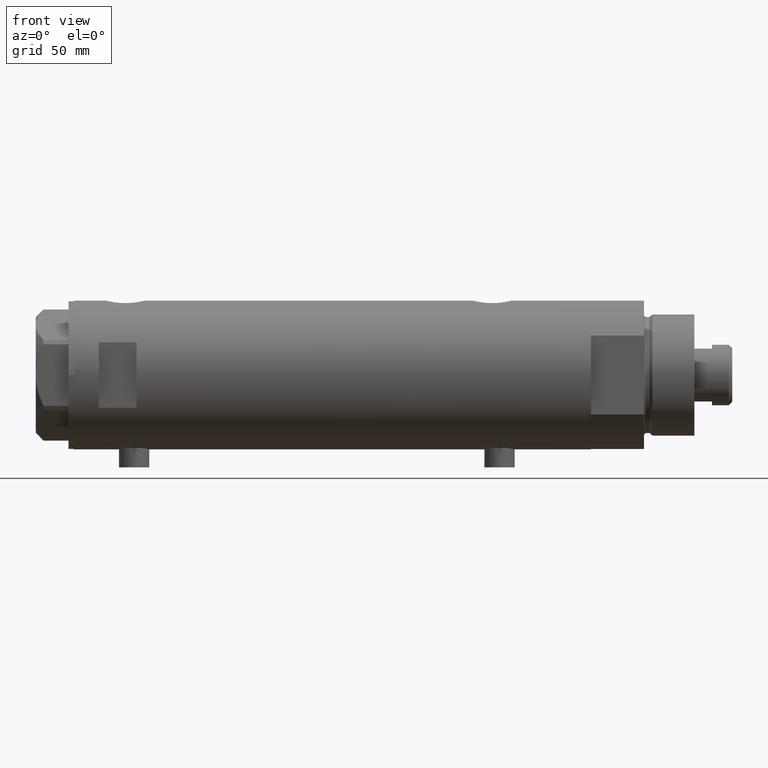
[diagram: clean part render]
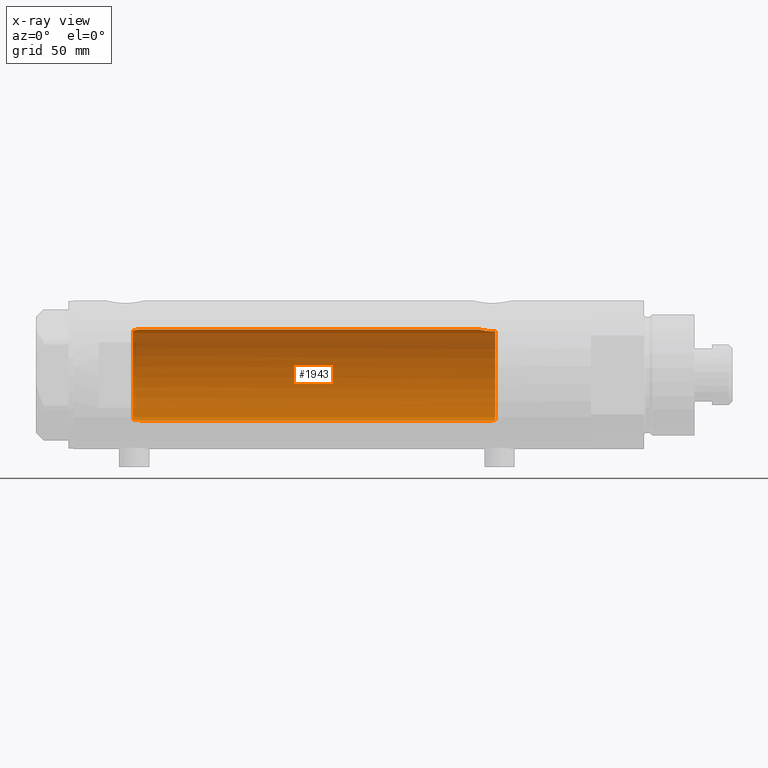
[diagram: x-ray — body ghosted, one internal face saturated and labeled with its STEP entity id]
A machine part, front view, then the same camera in x-ray: the body is ghosted and one INTERNAL B-rep face — a face not visible from any outside direction — is saturated and labeled: STEP entity #1943.
In plain terms, the highlighted cylindrical surface (partial cylindrical patch) has radius 18 mm, axis along (1, 0, -0).
Its self-contained STEP definition (entity closure, byte-faithful):
#24 = CARTESIAN_POINT ( 'NONE',  ( 17.97733715731491344, 0.9209699998971196955, -58.61935966604425374 ) ) ;
#38 = CARTESIAN_POINT ( 'NONE',  ( 17.58783030962033678, 3.829911878881830489, 79.10000000000000853 ) ) ;
#72 = CARTESIAN_POINT ( 'NONE',  ( 17.99716691696285764, 0.3685254503903822032, -58.54545042928658916 ) ) ;
#116 = CARTESIAN_POINT ( 'NONE',  ( -18.00000000000000000, 0.000000000000000000, -63.79999999999999716 ) ) ;
#123 = CARTESIAN_POINT ( 'NONE',  ( 17.43128843254318028, 4.489613141718955092, -61.51700003713169451 ) ) ;
#244 = DIRECTION ( 'NONE',  ( 0.000000000000000000, 0.000000000000000000, 1.000000000000000000 ) ) ;
#309 = CARTESIAN_POINT ( 'NONE',  ( -17.82749843654113420, 2.486298441295534012, 78.91967494109754000 ) ) ;
#341 = ORIENTED_EDGE ( 'NONE', *, *, #705, .T. ) ;
#354 = CARTESIAN_POINT ( 'NONE',  ( 17.78617492856930227, 2.770629413254904971, 78.09682049650069757 ) ) ;
#376 = CARTESIAN_POINT ( 'NONE',  ( 17.63704841537100521, 3.603891093161686321, 78.81145343596539021 ) ) ;
#378 = CARTESIAN_POINT ( 'NONE',  ( 0.000000000000000000, 0.000000000000000000, 102.5999999999999943 ) ) ;
#430 = CARTESIAN_POINT ( 'NONE',  ( 17.83158514913445103, 2.461498934476306744, 77.89965995681279765 ) ) ;
#437 = CARTESIAN_POINT ( 'NONE',  ( 17.38237957915197285, 4.675094569549006707, -62.04138980228256628 ) ) ;
#461 = CARTESIAN_POINT ( 'NONE',  ( 17.34671983132638573, 4.806279138776327287, -64.24012329268312271 ) ) ;
#508 = CARTESIAN_POINT ( 'NONE',  ( 17.78478726694684653, 2.779555353823087938, -59.40297143050465678 ) ) ;
#682 = CARTESIAN_POINT ( 'NONE',  ( -18.00000000000000711, 0.3684436523298857957, 76.10000000000000853 ) ) ;
#684 = AXIS2_PLACEMENT_3D ( 'NONE', #378, #836, #3344 ) ;
#705 = EDGE_CURVE ( 'NONE', #939, #3482, #3832, .T. ) ;
#708 = CARTESIAN_POINT ( 'NONE',  ( -17.95816418424195504, 1.237771781631975099, 76.42014148713401767 ) ) ;
#732 = EDGE_CURVE ( 'NONE', #1692, #2147, #1037, .T. ) ;
#737 = CYLINDRICAL_SURFACE ( 'NONE', #684, 18.00000000000000000 ) ;
#836 = DIRECTION ( 'NONE',  ( -0.000000000000000000, -0.000000000000000000, -1.000000000000000000 ) ) ;
#871 = CARTESIAN_POINT ( 'NONE',  ( 17.94405978035182869, 1.463580074031385347, -58.74553017623721729 ) ) ;
#878 = CARTESIAN_POINT ( 'NONE',  ( -17.96336505771914460, 1.158437137172621645, -64.07804627005675968 ) ) ;
#889 = CARTESIAN_POINT ( 'NONE',  ( 0.000000000000000000, 0.000000000000000000, 79.10000000000000853 ) ) ;
#939 = VERTEX_POINT ( 'NONE', #2368 ) ;
#1007 = CARTESIAN_POINT ( 'NONE',  ( -17.92135699193089238, 1.687027558082471623, 76.74588287565644862 ) ) ;
#1037 = LINE ( 'NONE', #4024, #4237 ) ;
#1077 = CARTESIAN_POINT ( 'NONE',  ( 17.58783030962033678, 3.829911878881830489, 79.10000000000000853 ) ) ;
#1156 = CARTESIAN_POINT ( 'NONE',  ( 17.83051055968252285, 2.469307448774139324, -59.20420614498792133 ) ) ;
#1161 = CARTESIAN_POINT ( 'NONE',  ( -17.90642342847950275, 1.833030277983139333, -64.59999999999931219 ) ) ;
#1188 = VERTEX_POINT ( 'NONE', #3756 ) ;
#1210 = CARTESIAN_POINT ( 'NONE',  ( -17.95286768021396284, 1.309280107997278897, -64.16336257470373994 ) ) ;
#1234 = CARTESIAN_POINT ( 'NONE',  ( 17.98587882862718246, 0.7362002489460840460, -58.58746722239204985 ) ) ;
#1241 = CARTESIAN_POINT ( 'NONE',  ( -17.91832049203241439, 1.716810780632715083, -64.47468596615661340 ) ) ;
#1273 = EDGE_CURVE ( 'NONE', #939, #3276, #3116, .T. ) ;
#1351 = CARTESIAN_POINT ( 'NONE',  ( -17.82614870471583401, 2.495683684402662639, 78.36291490437702123 ) ) ;
#1395 = CARTESIAN_POINT ( 'NONE',  ( -17.83255450012700649, 2.449489742783172996, 79.10000000000000853 ) ) ;
#1439 = CARTESIAN_POINT ( 'NONE',  ( 17.89217382667230893, 1.974183297225227562, 77.64981302266166097 ) ) ;
#1448 = EDGE_CURVE ( 'NONE', #2147, #3482, #1845, .T. ) ;
#1458 = CARTESIAN_POINT ( 'NONE',  ( 17.37157951943346035, 4.714681855650494136, -64.59999999999999432 ) ) ;
#1476 = B_SPLINE_CURVE_WITH_KNOTS ( 'NONE', 3,
 ( #1077, #376, #1863, #4780, #354, #430, #1885, #1439, #2226, #2537, #3672, #1839, #2952, #4069 ),
 .UNSPECIFIED., .F., .F.,
 ( 4, 2, 2, 2, 2, 2, 4 ),
 ( 0.02614985543880323990, 0.02725214354003939812, 0.02780328759065749458, 0.02835443164127558757, 0.02890557569189368056, 0.02945671974251177355, 0.03055900784374796994 ),
 .UNSPECIFIED. ) ;
#1495 = CARTESIAN_POINT ( 'NONE',  ( 17.76085061188611292, 2.927954048074874027, -59.51043039029092796 ) ) ;
#1542 = CARTESIAN_POINT ( 'NONE',  ( 17.71174132276681945, 3.211689381115077957, -59.74121359250869290 ) ) ;
#1590 = CARTESIAN_POINT ( 'NONE',  ( 17.41328271218090151, 4.558641711475907243, -61.69087254718660773 ) ) ;
#1658 = CARTESIAN_POINT ( 'NONE',  ( 18.00000000000000000, 5.958021437579254357E-16, -58.53499999999998238 ) ) ;
#1668 = EDGE_LOOP ( 'NONE', ( #2229, #3201, #4312, #2035, #2517, #3184, #341, #3585 ) ) ;
#1692 = VERTEX_POINT ( 'NONE', #3851 ) ;
#1725 = CARTESIAN_POINT ( 'NONE',  ( -17.94624864476198312, 1.397590066628585426, 76.51900161024215663 ) ) ;
#1745 = CARTESIAN_POINT ( 'NONE',  ( -17.85029215802977376, 2.318176074868579128, 77.64613149013025861 ) ) ;
#1773 = DIRECTION ( 'NONE',  ( -1.000000000000000000, 0.000000000000000000, 0.000000000000000000 ) ) ;
#1812 = CARTESIAN_POINT ( 'NONE',  ( -17.84158955897572696, 2.383204526717101146, 77.82263758307628621 ) ) ;
#1817 = CARTESIAN_POINT ( 'NONE',  ( -18.00000000000000000, 0.000000000000000000, 102.5999999999999943 ) ) ;
#1839 = CARTESIAN_POINT ( 'NONE',  ( 17.98843015915092280, 0.7391836159806548512, 77.27731130524779246 ) ) ;
#1845 = B_SPLINE_CURVE_WITH_KNOTS ( 'NONE', 3,
 ( #2641, #1892, #72, #1234, #24, #871, #3729, #3037, #1156, #508, #1495, #1542, #4502, #3377, #4552, #3010, #3752, #123, #1590, #437, #4129, #4450, #3057, #2619, #4180, #461, #3780 ),
 .UNSPECIFIED., .F., .F.,
 ( 4, 2, 2, 2, 2, 2, 2, 2, 2, 2, 1, 2, 2, 4 ),
 ( 0.01528157848519460030, 0.01583467956029640383, 0.01638778063539820737, 0.01749398278560182138, 0.01804708386070362838, 0.01860018493580543539, 0.01915328601090724239, 0.01970638708600904940, 0.02081258923621265994, 0.02136569031131446000, 0.02191879138641625313, 0.02247189246151805320, 0.02302499353661984632, 0.02413119568682348115 ),
 .UNSPECIFIED. ) ;
#1863 = CARTESIAN_POINT ( 'NONE',  ( 17.68814035493779002, 3.348626323852654796, 78.55183600219629625 ) ) ;
#1885 = CARTESIAN_POINT ( 'NONE',  ( 17.85293122918850628, 2.302201220737766452, 77.81031080804812916 ) ) ;
#1892 = CARTESIAN_POINT ( 'NONE',  ( 18.00000000000000355, 0.1844036484100908535, -58.53499999999998238 ) ) ;
#1943 = ADVANCED_FACE ( 'NONE', ( #4145 ), #737, .F. ) ;
#1971 = VERTEX_POINT ( 'NONE', #38 ) ;
#2005 = DIRECTION ( 'NONE',  ( 1.000000000000000000, 0.000000000000000000, 0.000000000000000000 ) ) ;
#2035 = ORIENTED_EDGE ( 'NONE', *, *, #2268, .F. ) ;
#2086 = CARTESIAN_POINT ( 'NONE',  ( 0.000000000000000000, 0.000000000000000000, -64.59999999999999432 ) ) ;
#2104 = CARTESIAN_POINT ( 'NONE',  ( -17.87088460660653766, 2.153683778660669290, 77.31724841463827147 ) ) ;
#2147 = VERTEX_POINT ( 'NONE', #1658 ) ;
#2226 = CARTESIAN_POINT ( 'NONE',  ( 17.91007218376325838, 1.805463612197659939, 77.57866376881658255 ) ) ;
#2229 = ORIENTED_EDGE ( 'NONE', *, *, #732, .F. ) ;
#2268 = EDGE_CURVE ( 'NONE', #2549, #1188, #3794, .T. ) ;
#2368 = CARTESIAN_POINT ( 'NONE',  ( -17.90642342847950275, 1.833030277983139333, -64.59999999999931219 ) ) ;
#2517 = ORIENTED_EDGE ( 'NONE', *, *, #4566, .T. ) ;
#2537 = CARTESIAN_POINT ( 'NONE',  ( 17.94167814235965253, 1.458276351914871150, 77.45504464479714102 ) ) ;
#2549 = VERTEX_POINT ( 'NONE', #4215 ) ;
#2619 = CARTESIAN_POINT ( 'NONE',  ( 17.32928165965088141, 4.867855194001447394, -63.31899018256648048 ) ) ;
#2641 = CARTESIAN_POINT ( 'NONE',  ( 18.00000000000000000, 5.958021437579254357E-16, -58.53499999999998238 ) ) ;
#2669 = CARTESIAN_POINT ( 'NONE',  ( -18.00000000000000000, 0.000000000000000000, -63.79999999999999716 ) ) ;
#2952 = CARTESIAN_POINT ( 'NONE',  ( 18.00000000000000355, 0.3728474842072360129, 77.23499999999999943 ) ) ;
#3004 = AXIS2_PLACEMENT_3D ( 'NONE', #889, #244, #2005 ) ;
#3010 = CARTESIAN_POINT ( 'NONE',  ( 17.53642083926970585, 4.065376572064633542, -60.70260027543616133 ) ) ;
#3037 = CARTESIAN_POINT ( 'NONE',  ( 17.85236636886078543, 2.306694554785104323, -59.11264586133006560 ) ) ;
#3057 = CARTESIAN_POINT ( 'NONE',  ( 17.33118376015917050, 4.861110225087390546, -63.13112109378172931 ) ) ;
#3116 = B_SPLINE_CURVE_WITH_KNOTS ( 'NONE', 3,
 ( #1161, #1241, #4534, #1210, #878, #4114, #3433, #2669 ),
 .UNSPECIFIED., .F., .F.,
 ( 4, 2, 2, 4 ),
 ( 0.01360098575045320946, 0.01411306367951526558, 0.01462514160857732344, 0.01564929746670143743 ),
 .UNSPECIFIED. ) ;
#3184 = ORIENTED_EDGE ( 'NONE', *, *, #1273, .F. ) ;
#3201 = ORIENTED_EDGE ( 'NONE', *, *, #4537, .F. ) ;
#3276 = VERTEX_POINT ( 'NONE', #116 ) ;
#3287 = CARTESIAN_POINT ( 'NONE',  ( -17.82958311517957739, 2.471426257451372344, 78.18046645260449168 ) ) ;
#3293 = DIRECTION ( 'NONE',  ( -0.000000000000000000, -0.000000000000000000, -1.000000000000000000 ) ) ;
#3343 = LINE ( 'NONE', #1817, #4417 ) ;
#3344 = DIRECTION ( 'NONE',  ( -1.000000000000000000, 0.000000000000000000, 0.000000000000000000 ) ) ;
#3377 = CARTESIAN_POINT ( 'NONE',  ( 17.63589737371338373, 3.604488512479874007, -60.12742655266249869 ) ) ;
#3380 = AXIS2_PLACEMENT_3D ( 'NONE', #2086, #3998, #1773 ) ;
#3418 = EDGE_CURVE ( 'NONE', #1971, #1188, #4260, .T. ) ;
#3433 = CARTESIAN_POINT ( 'NONE',  ( -17.99999999999999645, 0.3463326441765492425, -63.79999999999998295 ) ) ;
#3482 = VERTEX_POINT ( 'NONE', #1458 ) ;
#3585 = ORIENTED_EDGE ( 'NONE', *, *, #1448, .F. ) ;
#3604 = CARTESIAN_POINT ( 'NONE',  ( -17.98790814410162398, 0.7389993272946852043, 76.18352974933836208 ) ) ;
#3672 = CARTESIAN_POINT ( 'NONE',  ( 17.95540531162506426, 1.279032093992337193, 77.40250861430335760 ) ) ;
#3729 = CARTESIAN_POINT ( 'NONE',  ( 17.91189082287940693, 1.809824880389075297, -58.86912370284668583 ) ) ;
#3752 = CARTESIAN_POINT ( 'NONE',  ( 17.49030773641653269, 4.256160900234554845, -61.01469509681786718 ) ) ;
#3756 = CARTESIAN_POINT ( 'NONE',  ( -17.83255450012700649, 2.449489742783172996, 79.10000000000000853 ) ) ;
#3780 = CARTESIAN_POINT ( 'NONE',  ( 17.37157951943346035, 4.714681855650494136, -64.59999999999999432 ) ) ;
#3794 = B_SPLINE_CURVE_WITH_KNOTS ( 'NONE', 3,
 ( #4737, #682, #3604, #708, #1725, #1007, #3947, #4303, #2104, #1745, #1812, #3287, #1351, #4717, #309, #1395 ),
 .UNSPECIFIED., .F., .F.,
 ( 4, 2, 2, 2, 2, 2, 2, 4 ),
 ( 0.007825597788866827872, 0.008929372539743339957, 0.009481259915181604672, 0.01003314729061987112, 0.01058503466605813584, 0.01113692204149640055, 0.01168880941693466527, 0.01224069679237292999 ),
 .UNSPECIFIED. ) ;
#3832 = CIRCLE ( 'NONE', #3380, 18.00000000000000000 ) ;
#3851 = CARTESIAN_POINT ( 'NONE',  ( 18.00000000000000000, 0.000000000000000000, 77.23499999999998522 ) ) ;
#3947 = CARTESIAN_POINT ( 'NONE',  ( -17.90830209998921063, 1.818440982043824983, 76.87434744171716261 ) ) ;
#3998 = DIRECTION ( 'NONE',  ( 0.000000000000000000, 0.000000000000000000, -1.000000000000000000 ) ) ;
#4024 = CARTESIAN_POINT ( 'NONE',  ( 18.00000000000000000, 2.204364238465235428E-15, 102.5999999999999943 ) ) ;
#4069 = CARTESIAN_POINT ( 'NONE',  ( 18.00000000000000000, 0.000000000000000000, 77.23499999999998522 ) ) ;
#4114 = CARTESIAN_POINT ( 'NONE',  ( -17.98949107760678601, 0.6899666364176300082, -63.87303358989281321 ) ) ;
#4129 = CARTESIAN_POINT ( 'NONE',  ( 17.35631194664785681, 4.771042759406569189, -62.39667763205950024 ) ) ;
#4145 = FACE_OUTER_BOUND ( 'NONE', #1668, .T. ) ;
#4180 = CARTESIAN_POINT ( 'NONE',  ( 17.33262691996381477, 4.855935766715060886, -63.87488940890202826 ) ) ;
#4215 = CARTESIAN_POINT ( 'NONE',  ( -18.00000000000000000, 3.061617490159550962E-16, 76.09999999999999432 ) ) ;
#4237 = VECTOR ( 'NONE', #4721, 1000.000000000000000 ) ;
#4260 = CIRCLE ( 'NONE', #3004, 18.00000000000000000 ) ;
#4303 = CARTESIAN_POINT ( 'NONE',  ( -17.88283752013080985, 2.053809615874002681, 77.16247768058087786 ) ) ;
#4312 = ORIENTED_EDGE ( 'NONE', *, *, #3418, .T. ) ;
#4417 = VECTOR ( 'NONE', #3293, 1000.000000000000000 ) ;
#4450 = CARTESIAN_POINT ( 'NONE',  ( 17.34085862114804044, 4.826483754267692383, -62.76145238513610991 ) ) ;
#4502 = CARTESIAN_POINT ( 'NONE',  ( 17.68656644271517209, 3.347025706529860756, -59.86453774950908979 ) ) ;
#4534 = CARTESIAN_POINT ( 'NONE',  ( -17.93028482699292780, 1.588885888720734663, -64.36224988169317385 ) ) ;
#4537 = EDGE_CURVE ( 'NONE', #1971, #1692, #1476, .T. ) ;
#4552 = CARTESIAN_POINT ( 'NONE',  ( 17.61032289555864949, 3.726910670425183980, -60.26756985850230564 ) ) ;
#4566 = EDGE_CURVE ( 'NONE', #2549, #3276, #3343, .T. ) ;
#4717 = CARTESIAN_POINT ( 'NONE',  ( -17.82508408272472877, 2.503276281002373427, 78.73510831259082465 ) ) ;
#4721 = DIRECTION ( 'NONE',  ( -0.000000000000000000, -0.000000000000000000, -1.000000000000000000 ) ) ;
#4737 = CARTESIAN_POINT ( 'NONE',  ( -18.00000000000000000, 3.061617490159550962E-16, 76.09999999999999432 ) ) ;
#4780 = CARTESIAN_POINT ( 'NONE',  ( 17.76196254920472484, 2.921230608637953807, 78.20535341986153810 ) ) ;